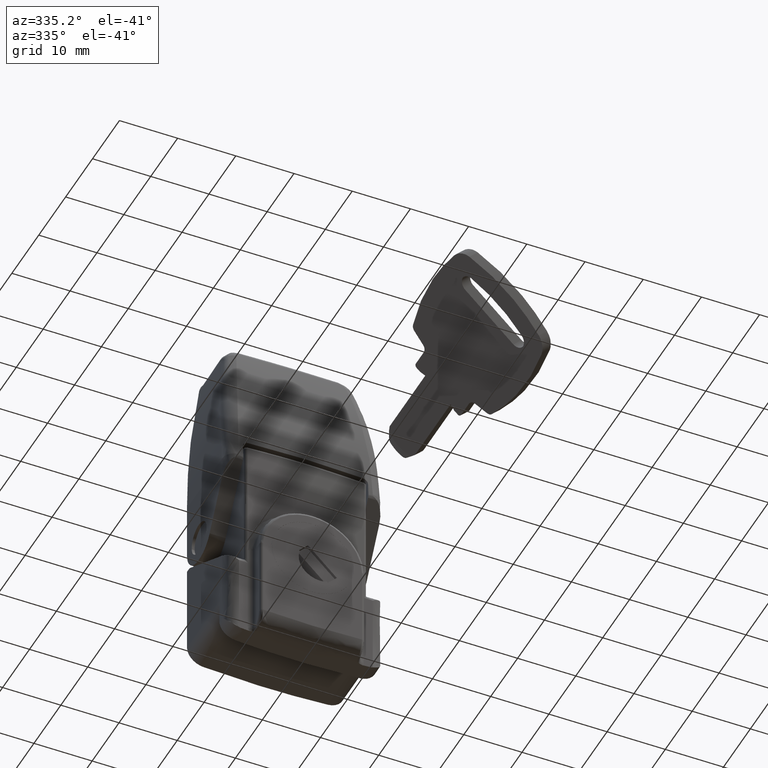
[diagram: clean part render]
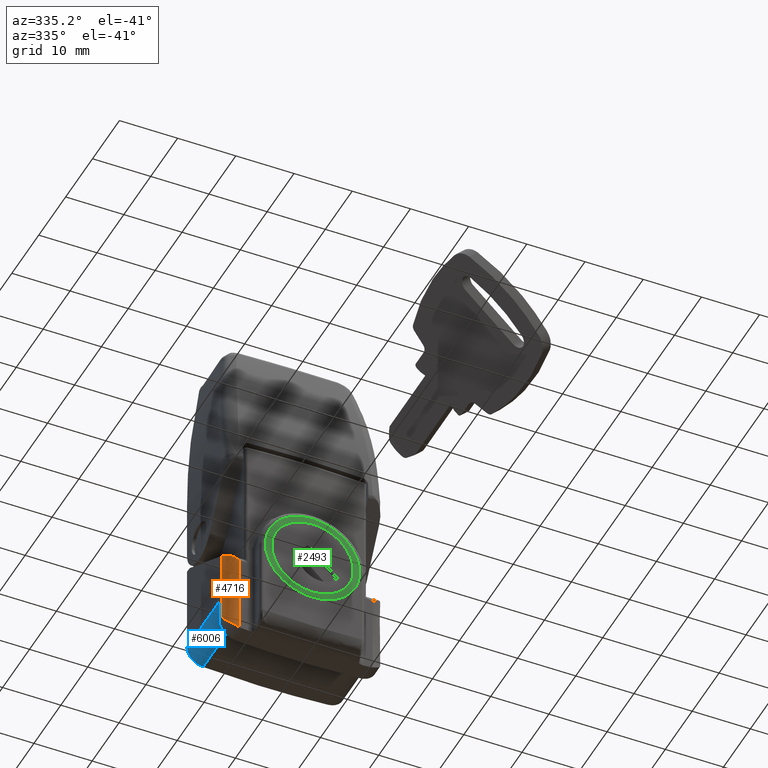
[diagram: same view with three faces highlighted in distinct colors, each labeled with its STEP entity id]
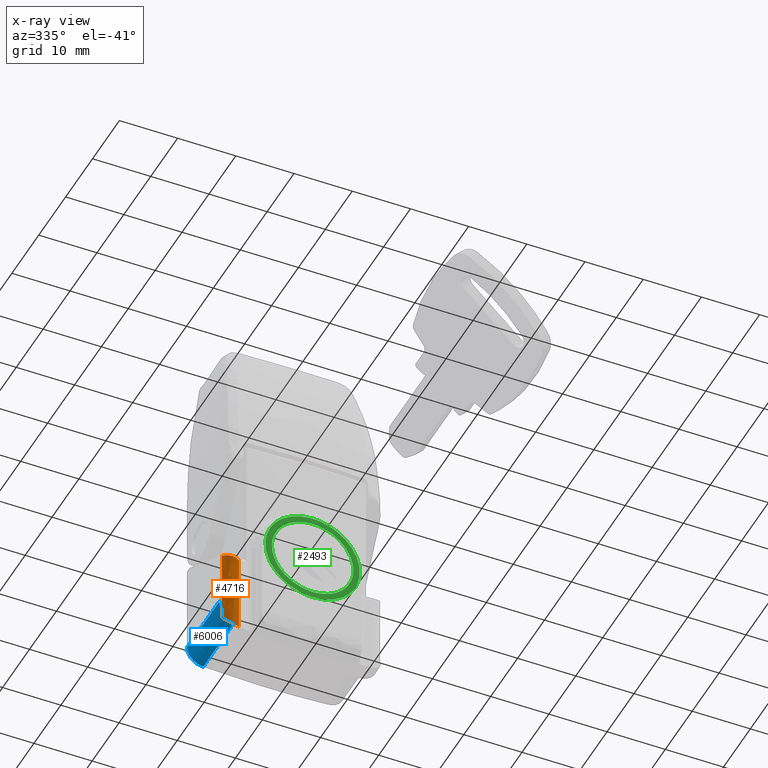
[diagram: x-ray of the same camera — body ghosted, the three highlighted faces saturated]
A machine part, auxiliary view with three faces highlighted in distinct colors.
The next image is the same camera in x-ray (body ghosted, the three faces saturated) — at least one of them is partly hidden behind the body in this view.
Their STEP definitions:

[orange] entity #4716 — the highlighted face is a freeform B-spline surface patch.
#4615=CARTESIAN_POINT('',(-14.112761225269329,13.498096443163710,-8.039229708523612));
#4616=CARTESIAN_POINT('',(-14.112761225269329,13.498096443163710,-24.350790060151660));
#4617=CARTESIAN_POINT('',(-16.352120539638420,13.595868982340029,-8.039229708523612));
#4618=CARTESIAN_POINT('',(-16.352120539638420,13.595868982340029,-24.350790060151667));
#4619=CARTESIAN_POINT('',(-16.195085825797399,11.359883806423721,-8.039229708523614));
#4620=CARTESIAN_POINT('',(-16.195085825797399,11.359883806423721,-24.350790060151667));
#4628=(BOUNDED_SURFACE()B_SPLINE_SURFACE(1,2,((#4615,#4617,#4619),(#4616,#4618,#4620)),.UNSPECIFIED.,.F.,.F.,.U.)B_SPLINE_SURFACE_WITH_KNOTS((2,2),(3,3),(0.0,16.311560351628049),(0.0,3.583485091109527),.UNSPECIFIED.)GEOMETRIC_REPRESENTATION_ITEM()RATIONAL_B_SPLINE_SURFACE(((1.0,0.664513897467878,0.996233563369586),(1.0,0.664513897467878,0.996233563369586)))REPRESENTATION_ITEM('')SURFACE());
#4629=CARTESIAN_POINT('',(-14.199999999999999,13.500000000000000,-8.427369157699770));
#4630=VERTEX_POINT('',#4629);
#4631=CARTESIAN_POINT('',(-15.699999979495050,12.822875678782699,-9.293394502291609));
#4632=VERTEX_POINT('',#4631);
#4633=CARTESIAN_POINT('',(-14.199999999999999,13.500000000000000,-8.427369157699770));
#4634=CARTESIAN_POINT('',(-15.102832440631399,13.500000000000002,-8.948619681829570));
#4635=CARTESIAN_POINT('',(-15.699999979495059,12.822875678782720,-9.293394502291598));
#4643=(BOUNDED_CURVE()B_SPLINE_CURVE(2,(#4633,#4634,#4635),.UNSPECIFIED.,.F.,.U.)CURVE()GEOMETRIC_REPRESENTATION_ITEM()QUASI_UNIFORM_CURVE()RATIONAL_B_SPLINE_CURVE((1.0,0.911437830954850,1.0))REPRESENTATION_ITEM(''));
#4644=EDGE_CURVE('',#4630,#4632,#4643,.T.);
#4645=ORIENTED_EDGE('',*,*,#4644,.F.);
#4646=CARTESIAN_POINT('',(-14.199999999999999,13.500000000000121,-21.124520000000000));
#4647=VERTEX_POINT('',#4646);
#4648=CARTESIAN_POINT('',(-14.199999999999999,13.500000000000121,-21.124520000000000));
#4649=CARTESIAN_POINT('',(-14.199999999999999,13.500000000000000,-8.427369157699770));
#4650=QUASI_UNIFORM_CURVE('',1,(#4648,#4649),.UNSPECIFIED.,.F.,.U.);
#4651=EDGE_CURVE('',#4647,#4630,#4650,.T.);
#4652=ORIENTED_EDGE('',*,*,#4651,.F.);
#4653=CARTESIAN_POINT('',(-16.199999999999999,11.500000000000000,-23.952947124746100));
#4654=VERTEX_POINT('',#4653);
#4655=CARTESIAN_POINT('',(-16.199999999999999,11.500000000000000,-23.952947124746100));
#4656=CARTESIAN_POINT('',(-16.199999999999999,11.670613264612420,-23.892626226562189));
#4657=CARTESIAN_POINT('',(-16.178594282455819,11.831084220252540,-23.818714919837650));
#4658=CARTESIAN_POINT('',(-16.131406134328440,12.020767318718439,-23.710863215630070));
#4659=CARTESIAN_POINT('',(-16.120925803782740,12.058151524664140,-23.688512188953059));
#4660=CARTESIAN_POINT('',(-16.097965956616619,12.131834072876419,-23.642259001053329));
#4661=CARTESIAN_POINT('',(-16.085483612616748,12.168110209981689,-23.618361284140800));
#4662=CARTESIAN_POINT('',(-16.045729523156709,12.273925934350260,-23.545373335491501));
#4663=CARTESIAN_POINT('',(-16.016009317140188,12.340984997135671,-23.494674229127771));
#4664=CARTESIAN_POINT('',(-15.951094318628069,12.468924296638161,-23.389513144280748));
#4665=CARTESIAN_POINT('',(-15.915894645215980,12.529800683560399,-23.335049745997850));
#4666=CARTESIAN_POINT('',(-15.840653522688321,12.645879531116920,-23.222550888918711));
#4667=CARTESIAN_POINT('',(-15.800521881185000,12.701187713577230,-23.164391097739781));
#4668=CARTESIAN_POINT('',(-15.674071251179360,12.858382423343979,-22.985497734539450));
#4669=CARTESIAN_POINT('',(-15.583414380513750,12.949732939019761,-22.862667919322089));
#4670=CARTESIAN_POINT('',(-15.392548505888730,13.110400261982610,-22.610507932051672));
#4671=CARTESIAN_POINT('',(-15.292301340457771,13.179659689725691,-22.481170891095420));
#4672=CARTESIAN_POINT('',(-15.135915189272181,13.268518442483270,-22.282352050382428));
#4673=CARTESIAN_POINT('',(-15.082668750911941,13.295649280294739,-22.215141631196278));
#4674=CARTESIAN_POINT('',(-14.975603848018620,13.344423794196500,-22.080743676685831));
#4675=CARTESIAN_POINT('',(-14.921640160142200,13.366161264841409,-22.013370190783970));
#4676=CARTESIAN_POINT('',(-14.758628652502351,13.423856433599370,-21.810671431271292));
#4677=CARTESIAN_POINT('',(-14.648468008754520,13.452339735778160,-21.674770154613530));
#4678=CARTESIAN_POINT('',(-14.481491930714810,13.480896461866751,-21.469523725569911));
#4679=CARTESIAN_POINT('',(-14.425541818838040,13.488042587516009,-21.400875383146751));
#4680=CARTESIAN_POINT('',(-14.341225949904130,13.495206967092100,-21.297516892851249));
#4681=CARTESIAN_POINT('',(-14.313055461242680,13.497001992590921,-21.262999674784691));
#4682=CARTESIAN_POINT('',(-14.256590978992140,13.499398898875761,-21.193829518432040));
#4683=CARTESIAN_POINT('',(-14.228122295663191,13.500000000000000,-21.158962654750010));
#4684=CARTESIAN_POINT('',(-14.199999999999999,13.500000000000121,-21.124520000000000));
#4685=B_SPLINE_CURVE_WITH_KNOTS('',3,(#4655,#4656,#4657,#4658,#4659,#4660,#4661,#4662,#4663,#4664,#4665,#4666,#4667,#4668,#4669,#4670,#4671,#4672,#4673,#4674,#4675,#4676,#4677,#4678,#4679,#4680,#4681,#4682,#4683,#4684),.UNSPECIFIED.,.F.,.U.,(4,2,2,2,2,2,2,2,2,2,2,2,2,2,4),(0.0,0.125000000000003,0.156250000000003,0.187500000000003,0.250000000000002,0.312500000000002,0.375000000000002,0.500000000000001,0.625000000000001,0.687500000000000,0.750000000000000,0.875000000000000,0.937500000000001,0.968750000000000,1.0),.UNSPECIFIED.);
#4686=EDGE_CURVE('',#4654,#4647,#4685,.T.);
#4687=ORIENTED_EDGE('',*,*,#4686,.F.);
#4688=CARTESIAN_POINT('',(-16.199999999999999,11.500000000000000,-10.159419917914560));
#4689=VERTEX_POINT('',#4688);
#4690=CARTESIAN_POINT('',(-16.199999999999999,11.500000000000000,-10.159419917914560));
#4691=CARTESIAN_POINT('',(-16.199999999999999,11.500000000000000,-23.952947124746100));
#4692=QUASI_UNIFORM_CURVE('',1,(#4690,#4691),.UNSPECIFIED.,.F.,.U.);
#4693=EDGE_CURVE('',#4689,#4654,#4692,.T.);
#4694=ORIENTED_EDGE('',*,*,#4693,.F.);
#4695=CARTESIAN_POINT('',(-15.699999979495050,12.822875678782740,-9.293394502291609));
#4696=CARTESIAN_POINT('',(-15.788138651458439,12.722935821804301,-9.344281385493201));
#4697=CARTESIAN_POINT('',(-15.862049027274130,12.619379689520191,-9.404426697481863));
#4698=CARTESIAN_POINT('',(-15.956320113672961,12.458746120149190,-9.503629703739930));
#4699=CARTESIAN_POINT('',(-15.984924142048280,12.404312952654751,-9.538243858389381));
#4700=CARTESIAN_POINT('',(-16.036816309736590,12.293625827132420,-9.610143967725314));
#4701=CARTESIAN_POINT('',(-16.059964531101190,12.237612280729460,-9.647279958109964));
#4702=CARTESIAN_POINT('',(-16.120801532673848,12.069808043666759,-9.760133216222011));
#4703=CARTESIAN_POINT('',(-16.150418118996370,11.957320255153681,-9.837873849506138));
#4704=CARTESIAN_POINT('',(-16.180126704934761,11.787082559684540,-9.956877919726246));
#4705=CARTESIAN_POINT('',(-16.187553289513929,11.730086283373559,-9.996953022471024));
#4706=CARTESIAN_POINT('',(-16.195006494132791,11.644138934663300,-10.057555672083510));
#4707=CARTESIAN_POINT('',(-16.196875305238478,11.615414238839911,-10.077838445968370));
#4708=CARTESIAN_POINT('',(-16.199372571437859,11.557799236848060,-10.118549706061721));
#4709=CARTESIAN_POINT('',(-16.199999999999999,11.528690088246559,-10.139132995775411));
#4710=CARTESIAN_POINT('',(-16.199999999999999,11.500000000000000,-10.159419917914560));
#4711=B_SPLINE_CURVE_WITH_KNOTS('',3,(#4695,#4696,#4697,#4698,#4699,#4700,#4701,#4702,#4703,#4704,#4705,#4706,#4707,#4708,#4709,#4710),.UNSPECIFIED.,.F.,.U.,(4,2,2,2,2,2,2,4),(0.0,0.249999999999999,0.374999999999999,0.499999999999998,0.749999999999999,0.874999999999999,0.937500000000000,1.0),.UNSPECIFIED.);
#4712=EDGE_CURVE('',#4632,#4689,#4711,.T.);
#4713=ORIENTED_EDGE('',*,*,#4712,.F.);
#4714=EDGE_LOOP('',(#4645,#4652,#4687,#4694,#4713));
#4715=FACE_OUTER_BOUND('',#4714,.T.);
#4716=ADVANCED_FACE('',(#4715),#4628,.T.);

[blue] entity #6006 — the highlighted face is a freeform B-spline surface patch.
#5613=CARTESIAN_POINT('',(-14.204332000000040,10.714285726916620,-20.116857151331700));
#5614=VERTEX_POINT('',#5613);
#5695=CARTESIAN_POINT('',(-14.204332000000040,12.500000000000000,-19.360587977499900));
#5696=VERTEX_POINT('',#5695);
#5702=CARTESIAN_POINT('',(-14.204332000000040,10.714285726916620,-20.116857151331690));
#5703=CARTESIAN_POINT('',(-14.204332000000043,11.736291296367334,-20.043669808032114));
#5704=CARTESIAN_POINT('',(-14.204332000000040,12.500000000000000,-19.360587977499900));
#5712=(BOUNDED_CURVE()B_SPLINE_CURVE(2,(#5702,#5703,#5704),.UNSPECIFIED.,.F.,.U.)CURVE()GEOMETRIC_REPRESENTATION_ITEM()QUASI_UNIFORM_CURVE()RATIONAL_B_SPLINE_CURVE((1.0,0.946327425595306,1.0))REPRESENTATION_ITEM(''));
#5713=EDGE_CURVE('',#5614,#5696,#5712,.T.);
#5929=CARTESIAN_POINT('',(-13.204332000000040,12.500000000000000,-19.360587977499900));
#5930=VERTEX_POINT('',#5929);
#5936=CARTESIAN_POINT('',(-14.204332000000040,12.500000000000000,-19.360587977499900));
#5937=CARTESIAN_POINT('',(-13.204332000000040,12.500000000000000,-19.360587977499900));
#5938=QUASI_UNIFORM_CURVE('',1,(#5936,#5937),.UNSPECIFIED.,.F.,.U.);
#5939=EDGE_CURVE('',#5696,#5930,#5938,.T.);
#5946=CARTESIAN_POINT('',(-14.529404200000039,13.499885769192510,-17.098340393504881));
#5947=CARTESIAN_POINT('',(-0.868244994999999,13.499885769192510,-17.098340393504881));
#5948=CARTESIAN_POINT('',(-14.529404200000050,13.525612396844716,-20.046319928550066));
#5949=CARTESIAN_POINT('',(-0.868244994999999,13.525612396844716,-20.046319928550066));
#5950=CARTESIAN_POINT('',(-14.529404200000039,10.578530844923620,-20.123491974926669));
#5951=CARTESIAN_POINT('',(-0.868244994999999,10.578530844923620,-20.123491974926669));
#5959=(BOUNDED_SURFACE()B_SPLINE_SURFACE(1,2,((#5946,#5948,#5950),(#5947,#5949,#5951)),.UNSPECIFIED.,.F.,.F.,.U.)B_SPLINE_SURFACE_WITH_KNOTS((2,2),(3,3),(0.0,13.661159205000040),(0.0,4.909329617132508),.UNSPECIFIED.)GEOMETRIC_REPRESENTATION_ITEM()RATIONAL_B_SPLINE_SURFACE(((1.0,0.713250449154182,1.0),(1.0,0.713250449154182,1.0)))REPRESENTATION_ITEM('')SURFACE());
#5960=ORIENTED_EDGE('',*,*,#5939,.T.);
#5961=CARTESIAN_POINT('',(-13.204332000000040,13.500000000000000,-17.124520000000000));
#5962=VERTEX_POINT('',#5961);
#5963=CARTESIAN_POINT('',(-13.204332000000040,12.500000000000000,-19.360587977499900));
#5964=CARTESIAN_POINT('',(-13.204332000000036,13.500000000000000,-18.466160786499916));
#5965=CARTESIAN_POINT('',(-13.204332000000040,13.500000000000000,-17.124520000000000));
#5973=(BOUNDED_CURVE()B_SPLINE_CURVE(2,(#5963,#5964,#5965),.UNSPECIFIED.,.F.,.U.)CURVE()GEOMETRIC_REPRESENTATION_ITEM()QUASI_UNIFORM_CURVE()RATIONAL_B_SPLINE_CURVE((1.0,0.912870929175272,1.0))REPRESENTATION_ITEM(''));
#5974=EDGE_CURVE('',#5930,#5962,#5973,.T.);
#5975=ORIENTED_EDGE('',*,*,#5974,.T.);
#5976=CARTESIAN_POINT('',(-1.201444000000000,13.500000000000000,-17.124520000000000));
#5977=VERTEX_POINT('',#5976);
#5978=CARTESIAN_POINT('',(-13.204332000000040,13.500000000000000,-17.124520000000000));
#5979=CARTESIAN_POINT('',(-1.201444000000000,13.500000000000000,-17.124520000000000));
#5980=QUASI_UNIFORM_CURVE('',1,(#5978,#5979),.UNSPECIFIED.,.F.,.U.);
#5981=EDGE_CURVE('',#5962,#5977,#5980,.T.);
#5982=ORIENTED_EDGE('',*,*,#5981,.T.);
#5983=CARTESIAN_POINT('',(-1.201444000000000,10.714285726916620,-20.116857151331700));
#5984=VERTEX_POINT('',#5983);
#5985=CARTESIAN_POINT('',(-1.201444000000000,13.500000000000000,-17.124520000000000));
#5986=CARTESIAN_POINT('',(-1.201444000000000,13.500000000000000,-19.917367996934757));
#5987=CARTESIAN_POINT('',(-1.201444000000000,10.714285726916620,-20.116857151331690));
#5995=(BOUNDED_CURVE()B_SPLINE_CURVE(2,(#5985,#5986,#5987),.UNSPECIFIED.,.F.,.U.)CURVE()GEOMETRIC_REPRESENTATION_ITEM()QUASI_UNIFORM_CURVE()RATIONAL_B_SPLINE_CURVE((1.0,0.731925056149492,1.0))REPRESENTATION_ITEM(''));
#5996=EDGE_CURVE('',#5977,#5984,#5995,.T.);
#5997=ORIENTED_EDGE('',*,*,#5996,.T.);
#5998=CARTESIAN_POINT('',(-14.204332000000040,10.714285726916620,-20.116857151331700));
#5999=CARTESIAN_POINT('',(-1.201444000000000,10.714285726916620,-20.116857151331700));
#6000=QUASI_UNIFORM_CURVE('',1,(#5998,#5999),.UNSPECIFIED.,.F.,.U.);
#6001=EDGE_CURVE('',#5614,#5984,#6000,.T.);
#6002=ORIENTED_EDGE('',*,*,#6001,.F.);
#6003=ORIENTED_EDGE('',*,*,#5713,.T.);
#6004=EDGE_LOOP('',(#5960,#5975,#5982,#5997,#6002,#6003));
#6005=FACE_OUTER_BOUND('',#6004,.T.);
#6006=ADVANCED_FACE('',(#6005),#5959,.T.);

[green] entity #2493 — the highlighted face is a freeform B-spline surface patch.
#1706=CARTESIAN_POINT('',(-21.0,-6.960996779805193,-8.827419984976530));
#1707=VERTEX_POINT('',#1706);
#1713=CARTESIAN_POINT('',(-21.0,2.273737E-013,-0.990000000000000));
#1714=VERTEX_POINT('',#1713);
#1715=CARTESIAN_POINT('',(-21.000000000000004,-6.960996779805193,-8.827419984976530));
#1716=CARTESIAN_POINT('',(-21.000000000000004,-7.009999999999772,-8.415161078792888));
#1717=CARTESIAN_POINT('',(-21.0,-7.009999999999772,-8.0));
#1718=CARTESIAN_POINT('',(-21.000000000000004,-7.009999999999771,-0.990000000000001));
#1719=CARTESIAN_POINT('',(-21.0,2.273737E-013,-0.990000000000000));
#1727=(BOUNDED_CURVE()B_SPLINE_CURVE(2,(#1715,#1716,#1717,#1718,#1719),.UNSPECIFIED.,.F.,.U.)B_SPLINE_CURVE_WITH_KNOTS((3,2,3),(0.229562473514059,0.250000000000000,0.500000000000000),.UNSPECIFIED.)CURVE()GEOMETRIC_REPRESENTATION_ITEM()RATIONAL_B_SPLINE_CURVE((0.956026754184778,0.976055948331790,1.0,0.707106781186548,1.0))REPRESENTATION_ITEM(''));
#1728=EDGE_CURVE('',#1707,#1714,#1727,.T.);
#1730=CARTESIAN_POINT('',(-21.0,6.996924936935249,-7.572049737823639));
#1731=VERTEX_POINT('',#1730);
#1732=CARTESIAN_POINT('',(-21.0,2.273737E-013,-0.990000000000000));
#1733=CARTESIAN_POINT('',(-21.000000000000007,6.594349528939216,-0.990000000000001));
#1734=CARTESIAN_POINT('',(-21.000000000000004,6.996924936935249,-7.572049737823639));
#1742=(BOUNDED_CURVE()B_SPLINE_CURVE(2,(#1732,#1733,#1734),.UNSPECIFIED.,.F.,.U.)B_SPLINE_CURVE_WITH_KNOTS((3,3),(0.500000000000000,0.739332962240142),.UNSPECIFIED.)CURVE()GEOMETRIC_REPRESENTATION_ITEM()RATIONAL_B_SPLINE_CURVE((1.0,0.719603993285305,0.976072041669287))REPRESENTATION_ITEM(''));
#1743=EDGE_CURVE('',#1714,#1731,#1742,.T.);
#1817=CARTESIAN_POINT('',(-21.0,2.273737E-013,-15.010000000000000));
#1818=VERTEX_POINT('',#1817);
#1819=CARTESIAN_POINT('',(-21.000000000000004,6.996924936935249,-7.572049737823639));
#1820=CARTESIAN_POINT('',(-21.000000000000004,7.010000000000227,-7.785825129239775));
#1821=CARTESIAN_POINT('',(-21.0,7.010000000000227,-8.0));
#1822=CARTESIAN_POINT('',(-21.000000000000004,7.010000000000226,-15.010000000000000));
#1823=CARTESIAN_POINT('',(-21.0,2.273737E-013,-15.010000000000000));
#1831=(BOUNDED_CURVE()B_SPLINE_CURVE(2,(#1819,#1820,#1821,#1822,#1823),.UNSPECIFIED.,.F.,.U.)B_SPLINE_CURVE_WITH_KNOTS((3,2,3),(0.739332962240143,0.750000000000000,1.0),.UNSPECIFIED.)CURVE()GEOMETRIC_REPRESENTATION_ITEM()RATIONAL_B_SPLINE_CURVE((0.976072041669289,0.987502787901243,1.0,0.707106781186548,1.0))REPRESENTATION_ITEM(''));
#1832=EDGE_CURVE('',#1731,#1818,#1831,.T.);
#1834=CARTESIAN_POINT('',(-21.0,2.273737E-013,-15.010000000000000));
#1835=CARTESIAN_POINT('',(-20.999999999999996,-6.226103426860039,-15.009999999999996));
#1836=CARTESIAN_POINT('',(-21.0,-6.960996779805193,-8.827419984976530));
#1844=(BOUNDED_CURVE()B_SPLINE_CURVE(2,(#1834,#1835,#1836),.UNSPECIFIED.,.F.,.U.)B_SPLINE_CURVE_WITH_KNOTS((3,3),(0.0,0.229562473514059),.UNSPECIFIED.)CURVE()GEOMETRIC_REPRESENTATION_ITEM()RATIONAL_B_SPLINE_CURVE((1.0,0.731050832854758,0.956026754184778))REPRESENTATION_ITEM(''));
#1845=EDGE_CURVE('',#1818,#1707,#1844,.T.);
#2059=CARTESIAN_POINT('',(-21.0,-8.068202401685305,-8.959028156748165));
#2060=VERTEX_POINT('',#2059);
#2061=CARTESIAN_POINT('',(-21.0,2.273737E-013,0.125000000000000));
#2062=VERTEX_POINT('',#2061);
#2063=CARTESIAN_POINT('',(-20.999999999999996,-8.068202401685305,-8.959028156748165));
#2064=CARTESIAN_POINT('',(-21.000000000000004,-8.124999999999773,-8.481195972335486));
#2065=CARTESIAN_POINT('',(-21.0,-8.124999999999773,-8.0));
#2066=CARTESIAN_POINT('',(-21.000000000000007,-8.124999999999773,0.125000000000000));
#2067=CARTESIAN_POINT('',(-21.0,2.273737E-013,0.125000000000000));
#2075=(BOUNDED_CURVE()B_SPLINE_CURVE(2,(#2063,#2064,#2065,#2066,#2067),.UNSPECIFIED.,.F.,.U.)B_SPLINE_CURVE_WITH_KNOTS((3,2,3),(0.229562473508857,0.250000000000000,0.500000000000000),.UNSPECIFIED.)CURVE()GEOMETRIC_REPRESENTATION_ITEM()RATIONAL_B_SPLINE_CURVE((0.956026754174583,0.976055948325696,1.0,0.707106781186547,1.0))REPRESENTATION_ITEM(''));
#2076=EDGE_CURVE('',#2060,#2062,#2075,.T.);
#2117=CARTESIAN_POINT('',(-21.0,8.109845237166443,-7.503980616092020));
#2118=VERTEX_POINT('',#2117);
#2124=CARTESIAN_POINT('',(-21.0,2.273737E-013,0.125000000000000));
#2125=CARTESIAN_POINT('',(-21.0,7.643236793255376,0.125000000000000));
#2126=CARTESIAN_POINT('',(-21.0,8.109845237166443,-7.503980616092020));
#2134=(BOUNDED_CURVE()B_SPLINE_CURVE(2,(#2124,#2125,#2126),.UNSPECIFIED.,.F.,.U.)B_SPLINE_CURVE_WITH_KNOTS((3,3),(0.500000000000000,0.739332962234000),.UNSPECIFIED.)CURVE()GEOMETRIC_REPRESENTATION_ITEM()RATIONAL_B_SPLINE_CURVE((1.0,0.719603993292501,0.976072041656124))REPRESENTATION_ITEM(''));
#2135=EDGE_CURVE('',#2062,#2118,#2134,.T.);
#2158=CARTESIAN_POINT('',(-21.0,2.273737E-013,-16.125000000000000));
#2159=VERTEX_POINT('',#2158);
#2160=CARTESIAN_POINT('',(-21.0,2.273737E-013,-16.125000000000000));
#2161=CARTESIAN_POINT('',(-21.000000000000004,-7.216418023062795,-16.125000000000000));
#2162=CARTESIAN_POINT('',(-21.000000000000004,-8.068202401685305,-8.959028156748165));
#2170=(BOUNDED_CURVE()B_SPLINE_CURVE(2,(#2160,#2161,#2162),.UNSPECIFIED.,.F.,.U.)B_SPLINE_CURVE_WITH_KNOTS((3,3),(0.0,0.229562473508857),.UNSPECIFIED.)CURVE()GEOMETRIC_REPRESENTATION_ITEM()RATIONAL_B_SPLINE_CURVE((1.0,0.731050832860851,0.956026754174583))REPRESENTATION_ITEM(''));
#2171=EDGE_CURVE('',#2159,#2060,#2170,.T.);
#2173=CARTESIAN_POINT('',(-21.0,8.109845237166443,-7.503980616092020));
#2174=CARTESIAN_POINT('',(-20.999999999999996,8.125000000000227,-7.751758798011172));
#2175=CARTESIAN_POINT('',(-21.0,8.125000000000227,-8.0));
#2176=CARTESIAN_POINT('',(-21.000000000000007,8.125000000000227,-16.125000000000004));
#2177=CARTESIAN_POINT('',(-21.0,2.273737E-013,-16.125000000000000));
#2185=(BOUNDED_CURVE()B_SPLINE_CURVE(2,(#2173,#2174,#2175,#2176,#2177),.UNSPECIFIED.,.F.,.U.)B_SPLINE_CURVE_WITH_KNOTS((3,2,3),(0.739332962234000,0.750000000000000,1.0),.UNSPECIFIED.)CURVE()GEOMETRIC_REPRESENTATION_ITEM()RATIONAL_B_SPLINE_CURVE((0.976072041656123,0.987502787894046,1.0,0.707106781186547,1.0))REPRESENTATION_ITEM(''));
#2186=EDGE_CURVE('',#2118,#2159,#2185,.T.);
#2476=CARTESIAN_POINT('',(-21.0,8.936489713226363,0.936687468504347));
#2477=CARTESIAN_POINT('',(-21.0,-8.936539691720551,0.936687468504347));
#2478=CARTESIAN_POINT('',(-21.0,8.936489713226363,-16.936687904363311));
#2479=CARTESIAN_POINT('',(-21.0,-8.936539691720551,-16.936687904363311));
#2480=B_SPLINE_SURFACE_WITH_KNOTS('',1,1,((#2476,#2478),(#2477,#2479)),.UNSPECIFIED.,.F.,.F.,.U.,(2,2),(2,2),(0.0,17.873029404946909),(0.0,17.873375372867660),.UNSPECIFIED.);
#2481=ORIENTED_EDGE('',*,*,#2171,.T.);
#2482=ORIENTED_EDGE('',*,*,#2076,.T.);
#2483=ORIENTED_EDGE('',*,*,#2135,.T.);
#2484=ORIENTED_EDGE('',*,*,#2186,.T.);
#2485=EDGE_LOOP('',(#2481,#2482,#2483,#2484));
#2486=FACE_OUTER_BOUND('',#2485,.T.);
#2487=ORIENTED_EDGE('',*,*,#1743,.F.);
#2488=ORIENTED_EDGE('',*,*,#1728,.F.);
#2489=ORIENTED_EDGE('',*,*,#1845,.F.);
#2490=ORIENTED_EDGE('',*,*,#1832,.F.);
#2491=EDGE_LOOP('',(#2487,#2488,#2489,#2490));
#2492=FACE_BOUND('',#2491,.T.);
#2493=ADVANCED_FACE('',(#2486,#2492),#2480,.F.);